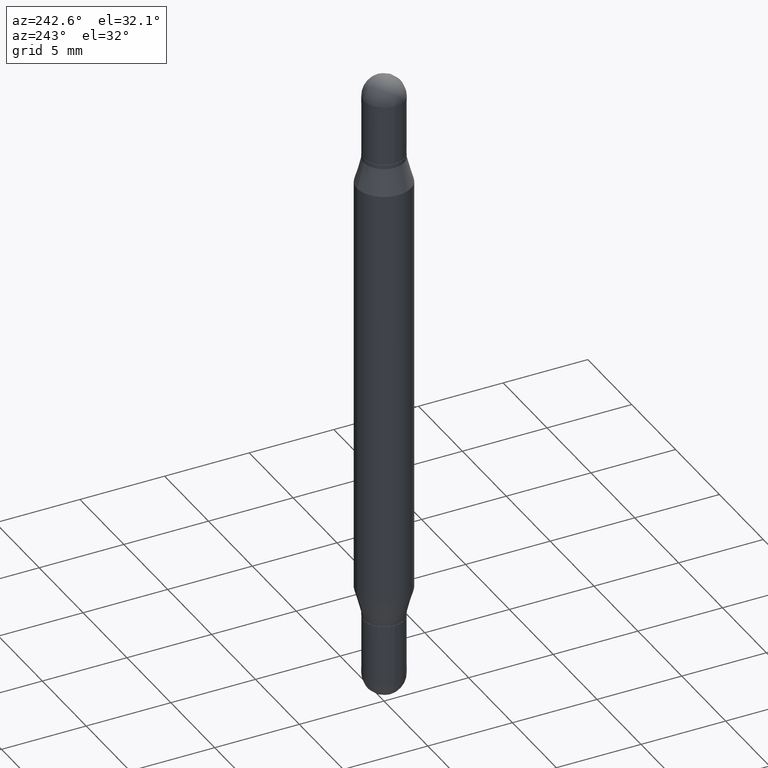
[diagram: clean part render]
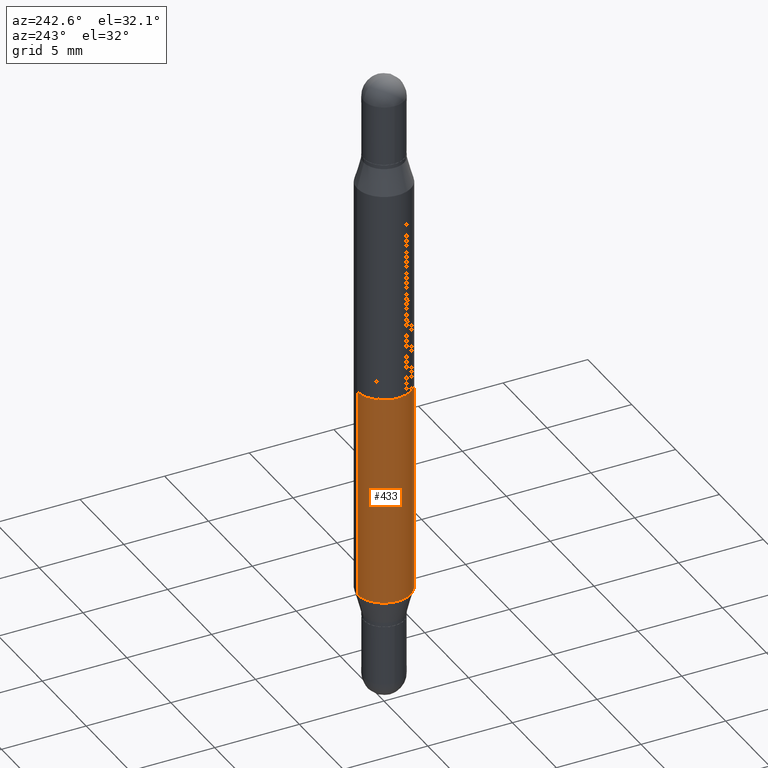
[diagram: same view with one face highlighted and labeled with its STEP entity id]
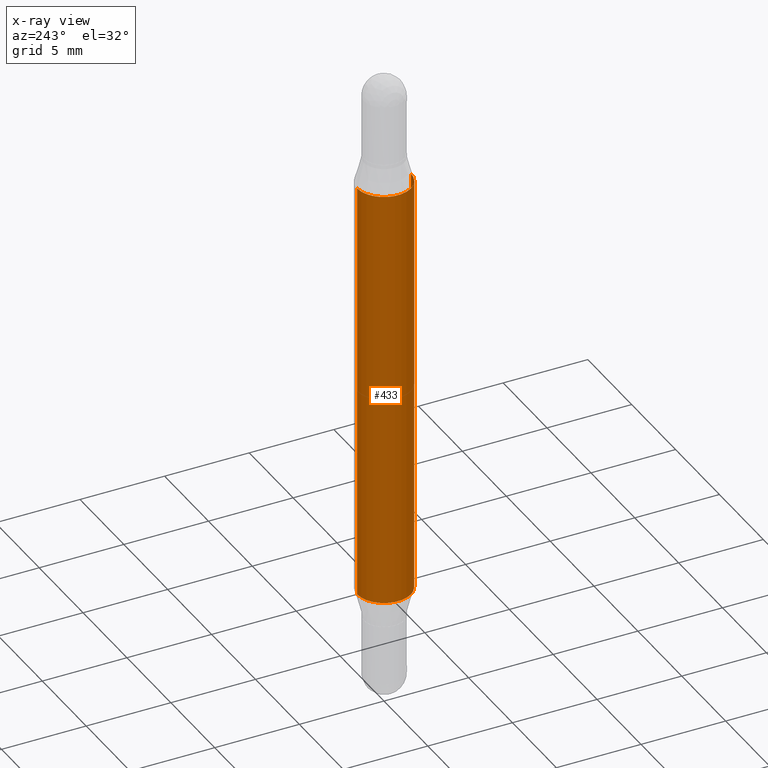
[diagram: x-ray of the same camera — body ghosted, the highlighted face saturated]
A machine part, auxiliary view. The second image highlights one B-rep face of the part: STEP entity #433.
The next image is the same camera in x-ray: the body ghosted, the highlighted face saturated — about 0% of this face is hidden behind the body in this view.
In plain terms, the highlighted cylindrical surface (edge-blend (fillet) strip) has radius 1.5875 mm, axis along (-0, -0, -1).
Its self-contained STEP definition (entity closure, byte-faithful):
#12 = CARTESIAN_POINT ( 'NONE',  ( -4.364351673553612490E-16, -0.06250000000000090206, -0.2552199925980755957 ) ) ;
#31 = CARTESIAN_POINT ( 'NONE',  ( 4.287811248607510938E-16, 0.06249999999999910488, -0.2552199925980759843 ) ) ;
#46 = VERTEX_POINT ( 'NONE', #31 ) ;
#52 = DIRECTION ( 'NONE',  ( -2.445281584569858182E-29, -3.479346354968757056E-15, -1.000000000000000000 ) ) ;
#62 = EDGE_LOOP ( 'NONE', ( #681, #424, #265, #942 ) ) ;
#68 = AXIS2_PLACEMENT_3D ( 'NONE', #615, #623, #609 ) ;
#87 = VECTOR ( 'NONE', #819, 39.37007874015748143 ) ;
#137 = CARTESIAN_POINT ( 'NONE',  ( -4.364351673553611504E-16, -0.06250000000000434375, -1.244780007401924404 ) ) ;
#163 = AXIS2_PLACEMENT_3D ( 'NONE', #440, #796, #652 ) ;
#171 = VERTEX_POINT ( 'NONE', #655 ) ;
#191 = CIRCLE ( 'NONE', #163, 0.06250000000000000000 ) ;
#253 = VERTEX_POINT ( 'NONE', #137 ) ;
#265 = ORIENTED_EDGE ( 'NONE', *, *, #512, .T. ) ;
#309 = CYLINDRICAL_SURFACE ( 'NONE', #853, 0.06250000000000000000 ) ;
#338 = VECTOR ( 'NONE', #668, 39.37007874015748143 ) ;
#346 = EDGE_CURVE ( 'NONE', #771, #253, #648, .T. ) ;
#366 = CIRCLE ( 'NONE', #68, 0.06250000000000000000 ) ;
#424 = ORIENTED_EDGE ( 'NONE', *, *, #709, .T. ) ;
#433 = ADVANCED_FACE ( 'NONE', ( #477 ), #309, .T. ) ;
#440 = CARTESIAN_POINT ( 'NONE',  ( 3.043837628940657870E-29, -8.973010728738630843E-16, -0.2552199925980758177 ) ) ;
#477 = FACE_OUTER_BOUND ( 'NONE', #62, .T. ) ;
#512 = EDGE_CURVE ( 'NONE', #171, #253, #366, .T. ) ;
#522 = DIRECTION ( 'NONE',  ( -6.982962677686265922E-15, -1.000000000000000000, 4.370956789862821150E-15 ) ) ;
#552 = CARTESIAN_POINT ( 'NONE',  ( 4.287811248607206733E-16, 0.06249999999999477501, -1.500000000000000666 ) ) ;
#589 = CARTESIAN_POINT ( 'NONE',  ( -4.364351673553916201E-16, -0.06250000000000521805, -1.500000000000000222 ) ) ;
#590 = EDGE_CURVE ( 'NONE', #46, #771, #191, .T. ) ;
#609 = DIRECTION ( 'NONE',  ( -6.982962677686265922E-15, -1.000000000000000000, 4.370956789862821150E-15 ) ) ;
#615 = CARTESIAN_POINT ( 'NONE',  ( 3.043837628940657870E-29, -4.346459907277488810E-15, -1.244780007401924626 ) ) ;
#623 = DIRECTION ( 'NONE',  ( -2.445281584569858182E-29, 3.491749450852216780E-15, 1.000000000000000000 ) ) ;
#648 = LINE ( 'NONE', #589, #338 ) ;
#652 = DIRECTION ( 'NONE',  ( -6.982962677686265922E-15, -1.000000000000000000, 3.278217592397115862E-15 ) ) ;
#655 = CARTESIAN_POINT ( 'NONE',  ( 4.287811248607390144E-16, 0.06249999999999565625, -1.244780007401924848 ) ) ;
#668 = DIRECTION ( 'NONE',  ( -2.445281584569858463E-29, -3.479346354968757451E-15, -1.000000000000000000 ) ) ;
#681 = ORIENTED_EDGE ( 'NONE', *, *, #590, .F. ) ;
#709 = EDGE_CURVE ( 'NONE', #46, #171, #1088, .T. ) ;
#771 = VERTEX_POINT ( 'NONE', #12 ) ;
#796 = DIRECTION ( 'NONE',  ( 2.445281584569858182E-29, 3.479346354968757056E-15, 1.000000000000000000 ) ) ;
#819 = DIRECTION ( 'NONE',  ( -2.445281584569858463E-29, -3.479346354968757451E-15, -1.000000000000000000 ) ) ;
#833 = CARTESIAN_POINT ( 'NONE',  ( 0.000000000000000000, -5.228321854365732350E-15, -1.500000000000000444 ) ) ;
#853 = AXIS2_PLACEMENT_3D ( 'NONE', #833, #52, #522 ) ;
#942 = ORIENTED_EDGE ( 'NONE', *, *, #346, .F. ) ;
#1088 = LINE ( 'NONE', #552, #87 ) ;